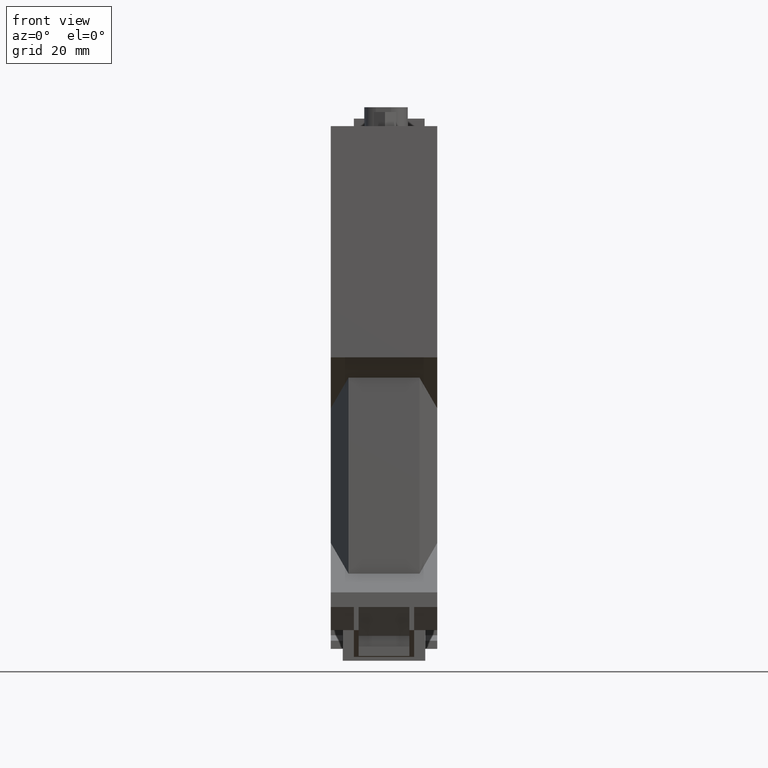
[diagram: clean part render]
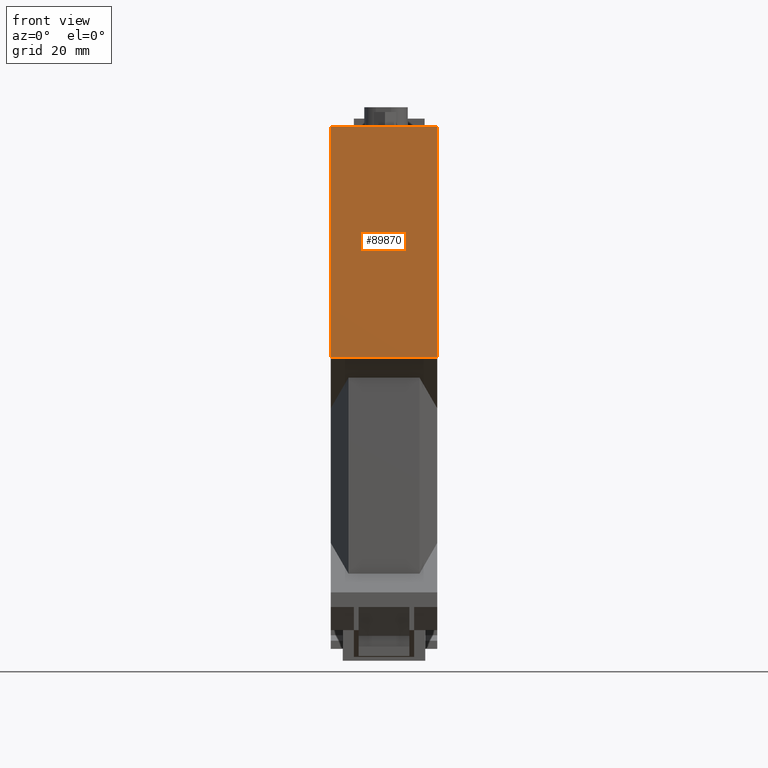
[diagram: same view with one face highlighted and labeled with its STEP entity id]
A machine part, front view. The second image highlights one B-rep face of the part: STEP entity #89870.
In plain terms, the highlighted planar face has unit normal (0, -1, 0).
Its self-contained STEP definition (entity closure, byte-faithful):
#1240=CARTESIAN_POINT('',(-66.9999999999093,107.000000000009,0.));
#1250=VERTEX_POINT('',#1240);
#1280=CARTESIAN_POINT('',(-66.9999999999093,24.,0.));
#1290=DIRECTION('',(0.,1.,0.));
#1300=VECTOR('',#1290,1.);
#1310=LINE('',#1280,#1300);
#1320=CARTESIAN_POINT('',(-66.9999999999093,57.9000000000013,0.));
#1330=VERTEX_POINT('',#1320);
#1340=EDGE_CURVE('',#1330,#1250,#1310,.T.);
#2430=CARTESIAN_POINT('',(-66.9999999999093,57.9000000000013,22.6));
#2440=VERTEX_POINT('',#2430);
#2470=CARTESIAN_POINT('',(-66.9999999999093,24.,22.6));
#2480=DIRECTION('',(0.,1.,0.));
#2490=VECTOR('',#2480,1.);
#2500=LINE('',#2470,#2490);
#2510=CARTESIAN_POINT('',(-66.9999999999093,107.000000000009,22.6));
#2520=VERTEX_POINT('',#2510);
#2530=EDGE_CURVE('',#2440,#2520,#2500,.T.);
#19180=CARTESIAN_POINT('',(-66.9999999999093,107.000000000009,0.));
#19190=DIRECTION('',(0.,-8.76330016597908E-25,-1.));
#19200=VECTOR('',#19190,1.);
#19210=LINE('',#19180,#19200);
#19220=EDGE_CURVE('',#2520,#1250,#19210,.T.);
#89580=CARTESIAN_POINT('',(-66.9999999999093,57.9000000000013,0.));
#89590=DIRECTION('',(0.,0.,1.));
#89600=VECTOR('',#89590,1.);
#89610=LINE('',#89580,#89600);
#89620=EDGE_CURVE('',#1330,#2440,#89610,.T.);
#89760=CARTESIAN_POINT('',(-66.9999999999093,-8.00000000000051,11.3));
#89770=DIRECTION('',(-1.,0.,0.));
#89780=DIRECTION('',(0.,1.,0.));
#89790=AXIS2_PLACEMENT_3D('',#89760,#89770,#89780);
#89800=PLANE('',#89790);
#89810=ORIENTED_EDGE('',*,*,#1340,.F.);
#89820=ORIENTED_EDGE('',*,*,#19220,.T.);
#89830=ORIENTED_EDGE('',*,*,#2530,.T.);
#89840=ORIENTED_EDGE('',*,*,#89620,.T.);
#89850=EDGE_LOOP('',(#89840,#89830,#89820,#89810));
#89860=FACE_OUTER_BOUND('',#89850,.T.);
#89870=ADVANCED_FACE('',(#89860),#89800,.T.);